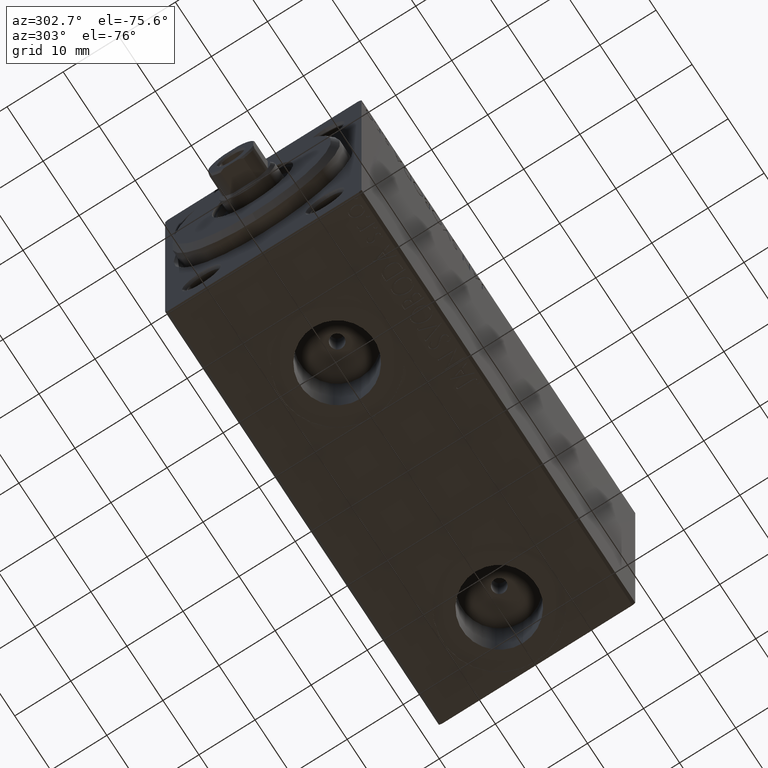
[diagram: clean part render]
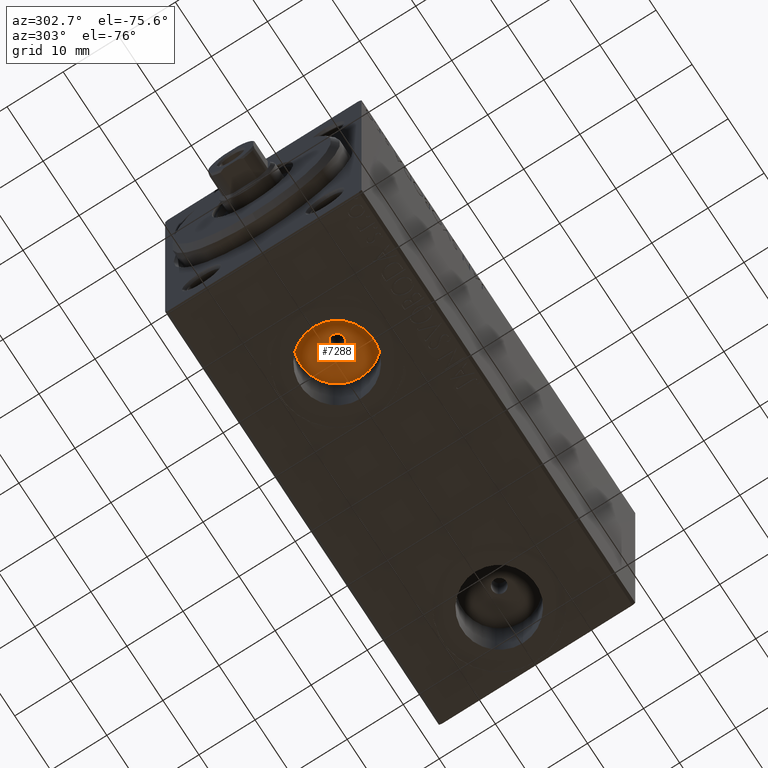
[diagram: same view with one face highlighted and labeled with its STEP entity id]
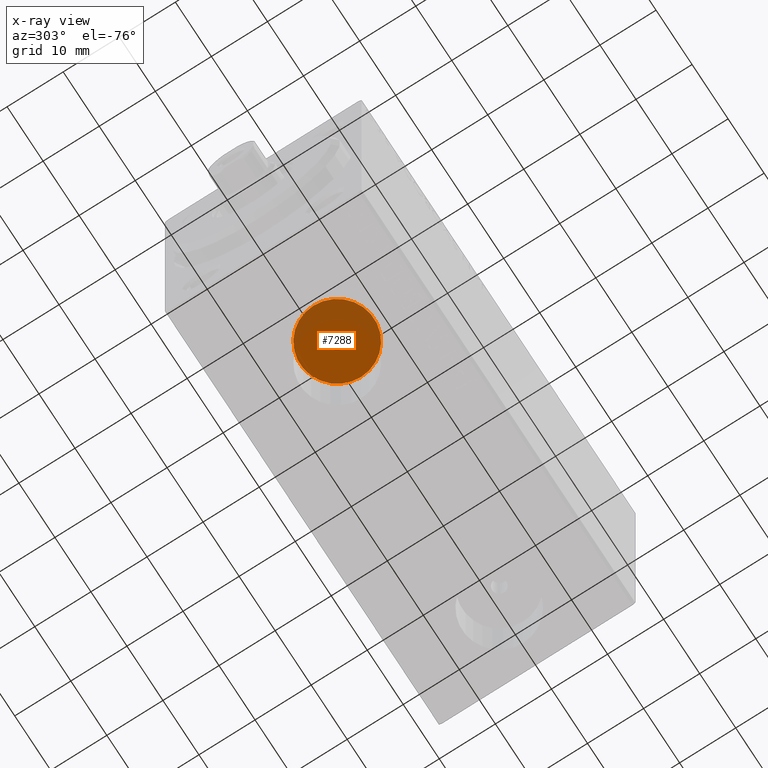
[diagram: x-ray of the same camera — body ghosted, the highlighted face saturated]
A machine part, auxiliary view. The second image highlights one B-rep face of the part: STEP entity #7288.
The next image is the same camera in x-ray: the body ghosted, the highlighted face saturated — about 33% of this face is hidden behind the body in this view.
In plain terms, the highlighted planar face has unit normal (0, 0, -1).
Its self-contained STEP definition (entity closure, byte-faithful):
#95 = CARTESIAN_POINT ( 'NONE',  ( 20.50000000000000355, -2.726986211408916281E-15, -14.50000000000000711 ) ) ;
#2215 = DIRECTION ( 'NONE',  ( -1.000000000000000000, 0.000000000000000000, 0.000000000000000000 ) ) ;
#3110 = CARTESIAN_POINT ( 'NONE',  ( 27.08000000000000540, -1.921168617569958028E-15, -14.50000000000000711 ) ) ;
#3973 = EDGE_LOOP ( 'NONE', ( #37162, #43773 ) ) ;
#4458 = DIRECTION ( 'NONE',  ( -1.000000000000000000, 0.000000000000000000, 0.000000000000000000 ) ) ;
#7288 = ADVANCED_FACE ( 'NONE', ( #27736, #35564 ), #10453, .T. ) ;
#7380 = VERTEX_POINT ( 'NONE', #12038 ) ;
#8212 = EDGE_CURVE ( 'NONE', #12066, #7380, #21952, .T. ) ;
#9615 = DIRECTION ( 'NONE',  ( -1.000000000000000000, 0.000000000000000000, 0.000000000000000000 ) ) ;
#9678 = CARTESIAN_POINT ( 'NONE',  ( 13.92000000000000171, -2.726986211408916281E-15, -14.50000000000000711 ) ) ;
#9962 = CIRCLE ( 'NONE', #19524, 6.580000000000002736 ) ;
#10453 = PLANE ( 'NONE',  #40300 ) ;
#12038 = CARTESIAN_POINT ( 'NONE',  ( 19.25000000000000711, -2.604941956496657404E-15, -14.50000000000000711 ) ) ;
#12066 = VERTEX_POINT ( 'NONE', #41115 ) ;
#12850 = CARTESIAN_POINT ( 'NONE',  ( 20.50000000000000355, -2.604941956496657404E-15, -14.50000000000000711 ) ) ;
#13865 = AXIS2_PLACEMENT_3D ( 'NONE', #12850, #15602, #44147 ) ;
#15297 = ORIENTED_EDGE ( 'NONE', *, *, #8212, .F. ) ;
#15602 = DIRECTION ( 'NONE',  ( 0.000000000000000000, 0.000000000000000000, -1.000000000000000000 ) ) ;
#17601 = EDGE_CURVE ( 'NONE', #35140, #22693, #33089, .T. ) ;
#17903 = AXIS2_PLACEMENT_3D ( 'NONE', #40369, #22628, #4458 ) ;
#19524 = AXIS2_PLACEMENT_3D ( 'NONE', #27126, #41158, #9615 ) ;
#20811 = DIRECTION ( 'NONE',  ( -1.000000000000000000, 0.000000000000000000, -0.000000000000000000 ) ) ;
#21952 = CIRCLE ( 'NONE', #13865, 1.249999999999997558 ) ;
#22628 = DIRECTION ( 'NONE',  ( 0.000000000000000000, 0.000000000000000000, -1.000000000000000000 ) ) ;
#22693 = VERTEX_POINT ( 'NONE', #9678 ) ;
#26179 = DIRECTION ( 'NONE',  ( 0.000000000000000000, 0.000000000000000000, -1.000000000000000000 ) ) ;
#27126 = CARTESIAN_POINT ( 'NONE',  ( 20.50000000000000355, -2.726986211408916281E-15, -14.50000000000000711 ) ) ;
#27736 = FACE_BOUND ( 'NONE', #40664, .T. ) ;
#30364 = EDGE_CURVE ( 'NONE', #7380, #12066, #36266, .T. ) ;
#33089 = CIRCLE ( 'NONE', #36024, 6.580000000000002736 ) ;
#33784 = CARTESIAN_POINT ( 'NONE',  ( 20.50000000000000355, -2.726986211408916281E-15, -14.50000000000000711 ) ) ;
#35140 = VERTEX_POINT ( 'NONE', #3110 ) ;
#35564 = FACE_OUTER_BOUND ( 'NONE', #3973, .T. ) ;
#36024 = AXIS2_PLACEMENT_3D ( 'NONE', #33784, #26179, #2215 ) ;
#36266 = CIRCLE ( 'NONE', #17903, 1.249999999999997558 ) ;
#37162 = ORIENTED_EDGE ( 'NONE', *, *, #40630, .T. ) ;
#40300 = AXIS2_PLACEMENT_3D ( 'NONE', #95, #41764, #20811 ) ;
#40369 = CARTESIAN_POINT ( 'NONE',  ( 20.50000000000000355, -2.604941956496657404E-15, -14.50000000000000711 ) ) ;
#40630 = EDGE_CURVE ( 'NONE', #22693, #35140, #9962, .T. ) ;
#40664 = EDGE_LOOP ( 'NONE', ( #44075, #15297 ) ) ;
#41115 = CARTESIAN_POINT ( 'NONE',  ( 21.75000000000000355, -2.451861106603238469E-15, -14.50000000000000711 ) ) ;
#41158 = DIRECTION ( 'NONE',  ( 0.000000000000000000, 0.000000000000000000, -1.000000000000000000 ) ) ;
#41764 = DIRECTION ( 'NONE',  ( 0.000000000000000000, 0.000000000000000000, -1.000000000000000000 ) ) ;
#43773 = ORIENTED_EDGE ( 'NONE', *, *, #17601, .T. ) ;
#44075 = ORIENTED_EDGE ( 'NONE', *, *, #30364, .F. ) ;
#44147 = DIRECTION ( 'NONE',  ( -1.000000000000000000, 0.000000000000000000, 0.000000000000000000 ) ) ;